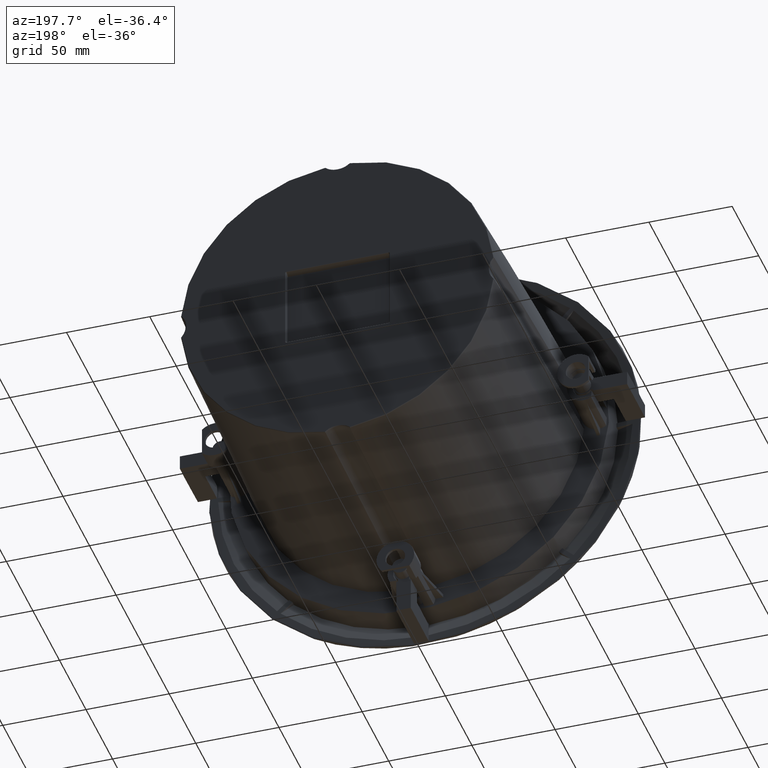
[diagram: clean part render]
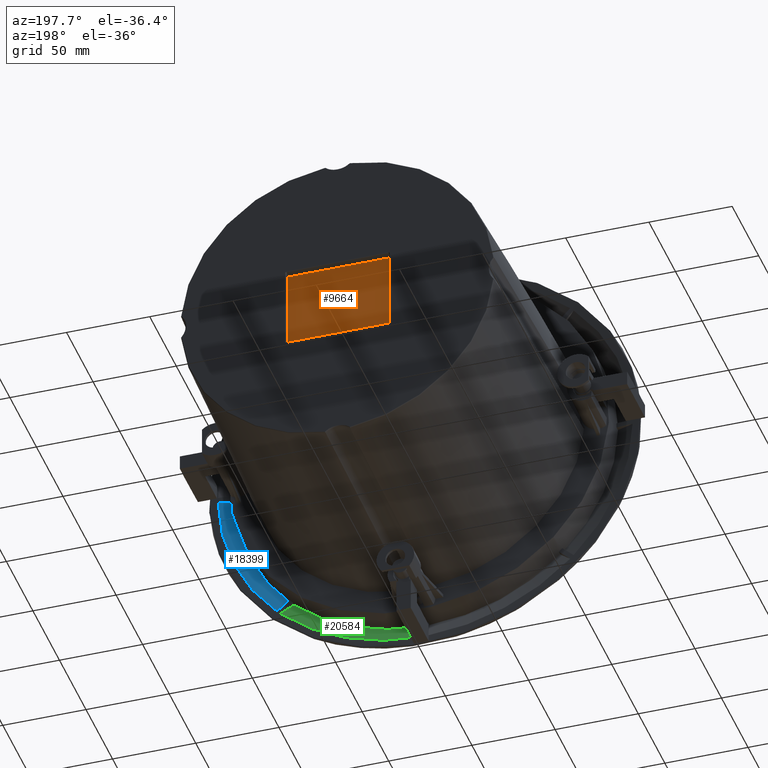
[diagram: same view with three faces highlighted in distinct colors, each labeled with its STEP entity id]
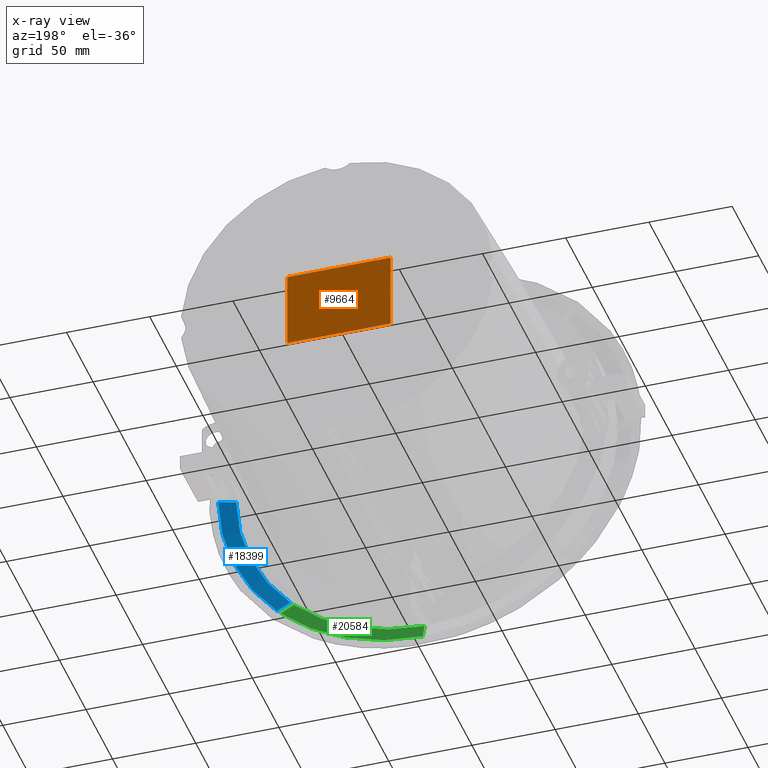
[diagram: x-ray of the same camera — body ghosted, the three highlighted faces saturated]
A machine part, auxiliary view with three faces highlighted in distinct colors.
The next image is the same camera in x-ray (body ghosted, the three faces saturated) — at least one of them is partly hidden behind the body in this view.
Their STEP definitions:

[orange] entity #9664 — the highlighted planar face has unit normal (0, -1, 0).
#223 = CARTESIAN_POINT ( 'NONE',  ( -31.00000000000001421, 150.1999999999999886, -22.94098300562504278 ) ) ;
#534 = CARTESIAN_POINT ( 'NONE',  ( -30.50000000000000711, 150.1999999999999886, 23.50000000000000711 ) ) ;
#1304 = EDGE_CURVE ( 'NONE', #19583, #18828, #22145, .T. ) ;
#1867 = VERTEX_POINT ( 'NONE', #10992 ) ;
#2239 = CARTESIAN_POINT ( 'NONE',  ( 31.00000000000000355, 150.1999999999999886, 22.94098300562507120 ) ) ;
#2754 = PLANE ( 'NONE',  #19427 ) ;
#3495 = DIRECTION ( 'NONE',  ( -1.387778780781490049E-17, 0.0000000000000000000, -1.000000000000000000 ) ) ;
#3971 =( BOUNDED_CURVE ( )  B_SPLINE_CURVE ( 3, ( #11456, #15280, #22106, #11362 ),
 .UNSPECIFIED., .F., .T. ) 
 B_SPLINE_CURVE_WITH_KNOTS ( ( 4, 4 ),
 ( 4.712388980384714543, 6.283185307179586232 ),
 .UNSPECIFIED. ) 
 CURVE ( )  GEOMETRIC_REPRESENTATION_ITEM ( )  RATIONAL_B_SPLINE_CURVE ( ( 1.000000000000000000, 0.8047378541243708217, 0.8047378541243708217, 1.000000000000000000 ) ) 
 REPRESENTATION_ITEM ( '' )  );
#4359 = DIRECTION ( 'NONE',  ( 1.000000000000000000, 0.0000000000000000000, -9.893519695248396509E-17 ) ) ;
#4696 =( BOUNDED_CURVE ( )  B_SPLINE_CURVE ( 3, ( #17885, #13179, #16647, #13290 ),
 .UNSPECIFIED., .F., .T. ) 
 B_SPLINE_CURVE_WITH_KNOTS ( ( 4, 4 ),
 ( 3.141592653589793116, 4.712388980384689674 ),
 .UNSPECIFIED. ) 
 CURVE ( )  GEOMETRIC_REPRESENTATION_ITEM ( )  RATIONAL_B_SPLINE_CURVE ( ( 1.000000000000000000, 0.8047378541243649375, 0.8047378541243649375, 1.000000000000000000 ) ) 
 REPRESENTATION_ITEM ( '' )  );
#4802 = ORIENTED_EDGE ( 'NONE', *, *, #6989, .T. ) ;
#5370 = CARTESIAN_POINT ( 'NONE',  ( 31.00000000000000355, 150.1999999999999886, -22.94098300562503923 ) ) ;
#5873 = EDGE_CURVE ( 'NONE', #15667, #18026, #4696, .T. ) ;
#6084 = ORIENTED_EDGE ( 'NONE', *, *, #21242, .F. ) ;
#6271 = DIRECTION ( 'NONE',  ( 1.249000902703301108E-16, 0.0000000000000000000, -1.000000000000000000 ) ) ;
#6819 = CARTESIAN_POINT ( 'NONE',  ( 30.50000000000000000, 150.1999999999999886, 23.50000000000000355 ) ) ;
#6989 = EDGE_CURVE ( 'NONE', #12534, #18026, #10512, .T. ) ;
#7192 = ORIENTED_EDGE ( 'NONE', *, *, #21896, .F. ) ;
#7339 = VECTOR ( 'NONE', #4359, 1000.000000000000000 ) ;
#7952 = CARTESIAN_POINT ( 'NONE',  ( 30.99999999999999645, 150.1999999999999886, 23.26844757933286445 ) ) ;
#8596 =( BOUNDED_CURVE ( )  B_SPLINE_CURVE ( 3, ( #534, #15175, #10011, #14839 ),
 .UNSPECIFIED., .F., .T. ) 
 B_SPLINE_CURVE_WITH_KNOTS ( ( 4, 4 ),
 ( 3.141592653589793116, 4.712388980384689674 ),
 .UNSPECIFIED. ) 
 CURVE ( )  GEOMETRIC_REPRESENTATION_ITEM ( )  RATIONAL_B_SPLINE_CURVE ( ( 1.000000000000000000, 0.8047378541243649375, 0.8047378541243649375, 1.000000000000000000 ) ) 
 REPRESENTATION_ITEM ( '' )  );
#8688 = LINE ( 'NONE', #15547, #7339 ) ;
#9437 = CARTESIAN_POINT ( 'NONE',  ( 30.79289321881344321, 150.1999999999999886, 23.50000000000000000 ) ) ;
#9541 = CARTESIAN_POINT ( 'NONE',  ( 31.00000000000000355, 150.1999999999999886, 22.94098300562507120 ) ) ;
#9664 = ADVANCED_FACE ( 'NONE', ( #14700 ), #2754, .F. ) ;
#9776 = EDGE_LOOP ( 'NONE', ( #7192, #4802, #22196, #20790, #20215, #11680, #13353, #6084 ) ) ;
#10011 = CARTESIAN_POINT ( 'NONE',  ( -31.00000000000000711, 150.1999999999999886, 23.26844757933286800 ) ) ;
#10512 = LINE ( 'NONE', #17465, #16703 ) ;
#10918 = EDGE_CURVE ( 'NONE', #17235, #15667, #8688, .T. ) ;
#10992 = CARTESIAN_POINT ( 'NONE',  ( -30.50000000000000711, 150.1999999999999886, 23.50000000000000711 ) ) ;
#11225 =( BOUNDED_CURVE ( )  B_SPLINE_CURVE ( 3, ( #9541, #7952, #9437, #16483 ),
 .UNSPECIFIED., .F., .T. ) 
 B_SPLINE_CURVE_WITH_KNOTS ( ( 4, 4 ),
 ( 4.712388980384714543, 6.283185307179586232 ),
 .UNSPECIFIED. ) 
 CURVE ( )  GEOMETRIC_REPRESENTATION_ITEM ( )  RATIONAL_B_SPLINE_CURVE ( ( 1.000000000000000000, 0.8047378541243708217, 0.8047378541243708217, 1.000000000000000000 ) ) 
 REPRESENTATION_ITEM ( '' )  );
#11332 = DIRECTION ( 'NONE',  ( 0.0000000000000000000, -1.000000000000000000, 0.0000000000000000000 ) ) ;
#11362 = CARTESIAN_POINT ( 'NONE',  ( -30.50000000000001066, 150.1999999999999886, -23.49999999999997868 ) ) ;
#11456 = CARTESIAN_POINT ( 'NONE',  ( -31.00000000000001421, 150.1999999999999886, -22.94098300562504278 ) ) ;
#11612 = CARTESIAN_POINT ( 'NONE',  ( -31.00000000000000711, 150.1999999999999886, 22.94098300562506765 ) ) ;
#11631 = DIRECTION ( 'NONE',  ( -1.000000000000000000, 0.0000000000000000000, 9.893519695248396509E-17 ) ) ;
#11680 = ORIENTED_EDGE ( 'NONE', *, *, #1304, .T. ) ;
#12510 = EDGE_CURVE ( 'NONE', #1867, #18828, #8596, .T. ) ;
#12534 = VERTEX_POINT ( 'NONE', #2239 ) ;
#13109 = LINE ( 'NONE', #19938, #21738 ) ;
#13179 = CARTESIAN_POINT ( 'NONE',  ( 30.79289321881346098, 150.1999999999999886, -23.49999999999997513 ) ) ;
#13290 = CARTESIAN_POINT ( 'NONE',  ( 31.00000000000000355, 150.1999999999999886, -22.94098300562503923 ) ) ;
#13353 = ORIENTED_EDGE ( 'NONE', *, *, #12510, .F. ) ;
#13654 = DIRECTION ( 'NONE',  ( 1.526556658859588764E-16, 0.0000000000000000000, 1.000000000000000000 ) ) ;
#14700 = FACE_OUTER_BOUND ( 'NONE', #9776, .T. ) ;
#14839 = CARTESIAN_POINT ( 'NONE',  ( -31.00000000000000711, 150.1999999999999886, 22.94098300562506765 ) ) ;
#15175 = CARTESIAN_POINT ( 'NONE',  ( -30.79289321881346098, 150.1999999999999886, 23.50000000000001776 ) ) ;
#15280 = CARTESIAN_POINT ( 'NONE',  ( -31.00000000000000711, 150.1999999999999886, -23.26844757933283603 ) ) ;
#15547 = CARTESIAN_POINT ( 'NONE',  ( -2.324977128383372643E-15, 150.1999999999999886, -23.49999999999997868 ) ) ;
#15667 = VERTEX_POINT ( 'NONE', #21137 ) ;
#16234 = EDGE_CURVE ( 'NONE', #19583, #17235, #3971, .T. ) ;
#16483 = CARTESIAN_POINT ( 'NONE',  ( 30.50000000000000000, 150.1999999999999886, 23.50000000000000355 ) ) ;
#16553 = CARTESIAN_POINT ( 'NONE',  ( -31.00000000000000711, 150.1999999999999886, 1.757147289737588674E-14 ) ) ;
#16647 = CARTESIAN_POINT ( 'NONE',  ( 31.00000000000000355, 150.1999999999999886, -23.26844757933283958 ) ) ;
#16703 = VECTOR ( 'NONE', #3495, 1000.000000000000000 ) ;
#17235 = VERTEX_POINT ( 'NONE', #20768 ) ;
#17414 = VECTOR ( 'NONE', #13654, 1000.000000000000000 ) ;
#17465 = CARTESIAN_POINT ( 'NONE',  ( 31.00000000000000355, 150.1999999999999886, 1.240893583286889779E-14 ) ) ;
#17694 = VERTEX_POINT ( 'NONE', #6819 ) ;
#17885 = CARTESIAN_POINT ( 'NONE',  ( 30.50000000000000355, 150.1999999999999886, -23.49999999999998224 ) ) ;
#18026 = VERTEX_POINT ( 'NONE', #5370 ) ;
#18828 = VERTEX_POINT ( 'NONE', #11612 ) ;
#19427 = AXIS2_PLACEMENT_3D ( 'NONE', #21534, #11332, #6271 ) ;
#19583 = VERTEX_POINT ( 'NONE', #223 ) ;
#19938 = CARTESIAN_POINT ( 'NONE',  ( 2.324977128383372643E-15, 150.1999999999999886, 23.50000000000000711 ) ) ;
#20215 = ORIENTED_EDGE ( 'NONE', *, *, #16234, .F. ) ;
#20768 = CARTESIAN_POINT ( 'NONE',  ( -30.50000000000001066, 150.1999999999999886, -23.49999999999997868 ) ) ;
#20790 = ORIENTED_EDGE ( 'NONE', *, *, #10918, .F. ) ;
#21137 = CARTESIAN_POINT ( 'NONE',  ( 30.50000000000000355, 150.1999999999999886, -23.49999999999998224 ) ) ;
#21242 = EDGE_CURVE ( 'NONE', #17694, #1867, #13109, .T. ) ;
#21534 = CARTESIAN_POINT ( 'NONE',  ( 0.0000000000000000000, 150.1999999999999886, 1.283914725491116015E-14 ) ) ;
#21738 = VECTOR ( 'NONE', #11631, 1000.000000000000000 ) ;
#21896 = EDGE_CURVE ( 'NONE', #12534, #17694, #11225, .T. ) ;
#22106 = CARTESIAN_POINT ( 'NONE',  ( -30.79289321881346098, 150.1999999999999886, -23.49999999999997868 ) ) ;
#22145 = LINE ( 'NONE', #16553, #17414 ) ;
#22196 = ORIENTED_EDGE ( 'NONE', *, *, #5873, .F. ) ;

[blue] entity #18399 — the highlighted face is a freeform B-spline surface patch.
#621 = VERTEX_POINT ( 'NONE', #15247 ) ;
#686 = CARTESIAN_POINT ( 'NONE',  ( 128.8283944190648640, -8.656767679236528679, -47.63314184474416635 ) ) ;
#690 = DIRECTION ( 'NONE',  ( -0.0000000000000000000, 1.000000000000000000, -0.0000000000000000000 ) ) ;
#922 = CARTESIAN_POINT ( 'NONE',  ( 58.63419636356175602, -24.67956679945779896, -57.19478086939876249 ) ) ;
#2500 = CARTESIAN_POINT ( 'NONE',  ( 139.1938061462523706, -6.639574480459436323, -17.42191918603962009 ) ) ;
#3172 = VERTEX_POINT ( 'NONE', #18038 ) ;
#4324 = CARTESIAN_POINT ( 'NONE',  ( 82.16175506852241028, -15.66972298475792869, -80.04043472496486800 ) ) ;
#4617 = VERTEX_POINT ( 'NONE', #9533 ) ;
#5495 = EDGE_CURVE ( 'NONE', #621, #3172, #18708, .T. ) ;
#5688 = CARTESIAN_POINT ( 'NONE',  ( 88.92576221865510888, -12.23786820109560658, -87.53577404515378646 ) ) ;
#5807 = CARTESIAN_POINT ( 'NONE',  ( 120.0763834534944152, -13.85456382208033510, 4.247406220533676446 ) ) ;
#6024 = CARTESIAN_POINT ( 'NONE',  ( 119.4861714016105481, -13.61005831715945469, -37.12955393068140353 ) ) ;
#6401 = CARTESIAN_POINT ( 'NONE',  ( 82.16175506852241028, -15.66972298475792869, -80.04043472496486800 ) ) ;
#6484 = EDGE_CURVE ( 'NONE', #13695, #3172, #15194, .T. ) ;
#6502 = AXIS2_PLACEMENT_3D ( 'NONE', #11308, #13002, #19826 ) ;
#6518 = EDGE_LOOP ( 'NONE', ( #11560, #12575, #8364, #11005 ) ) ;
#6802 = EDGE_CURVE ( 'NONE', #4617, #13695, #11322, .T. ) ;
#7312 = EDGE_CURVE ( 'NONE', #621, #4617, #12209, .T. ) ;
#7512 = CARTESIAN_POINT ( 'NONE',  ( 148.2581188282599953, -1.784579225335314323, -28.20341743554913450 ) ) ;
#7607 = CARTESIAN_POINT ( 'NONE',  ( 79.01279750324971474, -17.24238060760045954, -77.60292782904205922 ) ) ;
#7823 = CARTESIAN_POINT ( 'NONE',  ( 79.37447893860849035, -24.59717157107771968, -36.45449829435210631 ) ) ;
#8364 = ORIENTED_EDGE ( 'NONE', *, *, #7312, .F. ) ;
#9226 = CARTESIAN_POINT ( 'NONE',  ( 124.5276669081170553, -12.32490501161352725, -1.500000000000231370 ) ) ;
#9414 = CARTESIAN_POINT ( 'NONE',  ( 68.90343055730129151, -21.39461549580077460, -67.47706523793237920 ) ) ;
#9533 = CARTESIAN_POINT ( 'NONE',  ( 114.6942683262824545, -15.66972298475733893, -1.499999999998697930 ) ) ;
#10904 = CARTESIAN_POINT ( 'NONE',  ( 114.6942683262824545, -15.66972298475733893, -1.499999999998697930 ) ) ;
#10991 = CARTESIAN_POINT ( 'NONE',  ( 0.0000000000000000000, -15.66972298474743042, 1.283914725491116015E-14 ) ) ;
#11005 = ORIENTED_EDGE ( 'NONE', *, *, #5495, .T. ) ;
#11308 = CARTESIAN_POINT ( 'NONE',  ( -9.709641540802917083E-15, -12.32490501161353080, 2.254878879571411194E-14 ) ) ;
#11322 = CIRCLE ( 'NONE', #15983, 114.7040765922692032 ) ;
#11560 = ORIENTED_EDGE ( 'NONE', *, *, #6484, .F. ) ;
#12209 = B_SPLINE_CURVE_WITH_KNOTS ( 'NONE', 3,
 ( #9226, #12581, #12476, #10904 ),
 .UNSPECIFIED., .F., .F.,
 ( 4, 4 ),
 ( 2.907926436840383405E-17, 0.01038669990619620585 ),
 .UNSPECIFIED. ) ;
#12476 = CARTESIAN_POINT ( 'NONE',  ( 117.9876570138888212, -14.60061408458862786, -1.500000000000160538 ) ) ;
#12575 = ORIENTED_EDGE ( 'NONE', *, *, #6802, .F. ) ;
#12581 = CARTESIAN_POINT ( 'NONE',  ( 121.2654565411435641, -13.48567476020397748, -1.500000000000288436 ) ) ;
#12803 = CARTESIAN_POINT ( 'NONE',  ( 86.80828681570503136, -13.48567476020408229, -84.68696647214518691 ) ) ;
#13002 = DIRECTION ( 'NONE',  ( 2.369079274957320044E-18, 1.000000000000000000, -2.369079274957328133E-18 ) ) ;
#13542 =( BOUNDED_SURFACE ( )  B_SPLINE_SURFACE ( 3, 3, ( 
 ( #7512, #686, #17708, #5688 ),
 ( #2500, #6024, #14455, #7607 ),
 ( #21411, #21188, #15929, #9414 ),
 ( #5807, #19718, #7823, #922 ) ),
 .UNSPECIFIED., .F., .F., .F. ) 
 B_SPLINE_SURFACE_WITH_KNOTS ( ( 4, 4 ),
 ( 4, 4 ),
 ( 0.0000000000000000000, 1.000000000000000000 ),
 ( 0.0000000000000000000, 1.000000000000000000 ),
 .UNSPECIFIED. ) 
 GEOMETRIC_REPRESENTATION_ITEM ( )  RATIONAL_B_SPLINE_SURFACE ( (
 ( 1.000000000000000000, 0.9951150102632336791, 0.9951150102632336791, 1.000000000000000000),
 ( 0.9987953422158757366, 0.9939162372200212037, 0.9939162372200212037, 0.9987953422158757366),
 ( 0.9987953422158757366, 0.9939162372200212037, 0.9939162372200212037, 0.9987953422158757366),
 ( 1.000000000000000000, 0.9951150102632336791, 0.9951150102632336791, 1.000000000000000000) ) ) 
 REPRESENTATION_ITEM ( '' )  SURFACE ( )  );
#13695 = VERTEX_POINT ( 'NONE', #6401 ) ;
#14356 = FACE_OUTER_BOUND ( 'NONE', #6518, .T. ) ;
#14455 = CARTESIAN_POINT ( 'NONE',  ( 99.32735959851277130, -17.16167664528827785, -57.28836573377910923 ) ) ;
#14704 = CARTESIAN_POINT ( 'NONE',  ( 89.11501788784897826, -12.32490501161355390, -86.99369754428938961 ) ) ;
#15194 = B_SPLINE_CURVE_WITH_KNOTS ( 'NONE', 3,
 ( #4324, #21760, #12803, #14704 ),
 .UNSPECIFIED., .F., .F.,
 ( 4, 4 ),
 ( 0.0000000000000000000, 0.01038669990619660310 ),
 .UNSPECIFIED. ) ;
#15247 = CARTESIAN_POINT ( 'NONE',  ( 124.5276669081170553, -12.32490501161352725, -1.500000000000231370 ) ) ;
#15929 = CARTESIAN_POINT ( 'NONE',  ( 89.45567547818924936, -21.31296728739992830, -46.92482031704449952 ) ) ;
#15983 = AXIS2_PLACEMENT_3D ( 'NONE', #10991, #690, #21511 ) ;
#17708 = CARTESIAN_POINT ( 'NONE',  ( 108.9538552962251856, -12.15830229850133293, -67.50768096758376657 ) ) ;
#18038 = CARTESIAN_POINT ( 'NONE',  ( 89.11501788784897826, -12.32490501161355390, -86.99369754428938961 ) ) ;
#18399 = ADVANCED_FACE ( 'NONE', ( #14356 ), #13542, .F. ) ;
#18708 = CIRCLE ( 'NONE', #6502, 124.5367007174148455 ) ;
#19718 = CARTESIAN_POINT ( 'NONE',  ( 99.95574725307186270, -20.97112404031242150, -15.87322997988882634 ) ) ;
#19826 = DIRECTION ( 'NONE',  ( -0.7071067811865462405, 0.0000000000000000000, 0.7071067811865487940 ) ) ;
#21188 = CARTESIAN_POINT ( 'NONE',  ( 109.8503478097164106, -17.71979459665121936, -26.53014798551738096 ) ) ;
#21411 = CARTESIAN_POINT ( 'NONE',  ( 129.7885642568101900, -10.66775525870483143, -6.591931538423686732 ) ) ;
#21511 = DIRECTION ( 'NONE',  ( -0.7071067811865486830, 0.0000000000000000000, -0.7071067811865463515 ) ) ;
#21760 = CARTESIAN_POINT ( 'NONE',  ( 84.49053254261293944, -14.60061408458864385, -82.36921219905325131 ) ) ;

[green] entity #20584 — the highlighted face is a freeform B-spline surface patch.
#95 = CARTESIAN_POINT ( 'NONE',  ( 26.53014798551824072, -17.71979459665086409, -109.8503478097171779 ) ) ;
#203 = CARTESIAN_POINT ( 'NONE',  ( 15.87322997989027762, -20.97112404031198807, -99.95574725307304220 ) ) ;
#694 = CARTESIAN_POINT ( 'NONE',  ( 1.499999999999987566, -12.32490501161355567, -124.5276669081169985 ) ) ;
#1211 = CARTESIAN_POINT ( 'NONE',  ( 87.53577404515368698, -12.23786820109562612, -88.92576221865509467 ) ) ;
#1323 = CARTESIAN_POINT ( 'NONE',  ( 67.50768096758356762, -12.15830229850137911, -108.9538552962251288 ) ) ;
#1346 = ORIENTED_EDGE ( 'NONE', *, *, #13012, .F. ) ;
#1365 = CARTESIAN_POINT ( 'NONE',  ( 86.99369754428919066, -12.32490501161355567, -89.11501788784914879 ) ) ;
#1778 = CARTESIAN_POINT ( 'NONE',  ( 57.19478086940031147, -24.67956679945731935, -58.63419636356315578 ) ) ;
#1883 = CARTESIAN_POINT ( 'NONE',  ( -9.709641540802917083E-15, -12.32490501161353436, 2.254878879571411194E-14 ) ) ;
#2100 = CARTESIAN_POINT ( 'NONE',  ( 1.499999999999987566, -12.32490501161355567, -124.5276669081169985 ) ) ;
#2718 =( BOUNDED_SURFACE ( )  B_SPLINE_SURFACE ( 3, 3, ( 
 ( #1211, #1323, #20115, #4712 ),
 ( #11591, #18454, #16765, #8217 ),
 ( #20224, #5162, #95, #17642 ),
 ( #1778, #9003, #203, #15642 ) ),
 .UNSPECIFIED., .F., .F., .F. ) 
 B_SPLINE_SURFACE_WITH_KNOTS ( ( 4, 4 ),
 ( 4, 4 ),
 ( 0.0000000000000000000, 1.000000000000000000 ),
 ( 0.0000000000000000000, 1.000000000000000000 ),
 .UNSPECIFIED. ) 
 GEOMETRIC_REPRESENTATION_ITEM ( )  RATIONAL_B_SPLINE_SURFACE ( (
 ( 1.000000000000000000, 0.9951150102632336791, 0.9951150102632336791, 1.000000000000000000),
 ( 0.9987953422158759587, 0.9939162372200214257, 0.9939162372200214257, 0.9987953422158759587),
 ( 0.9987953422158759587, 0.9939162372200214257, 0.9939162372200214257, 0.9987953422158759587),
 ( 1.000000000000000000, 0.9951150102632336791, 0.9951150102632336791, 1.000000000000000000) ) ) 
 REPRESENTATION_ITEM ( '' )  SURFACE ( )  );
#2811 = AXIS2_PLACEMENT_3D ( 'NONE', #1883, #12577, #5832 ) ;
#2983 = CARTESIAN_POINT ( 'NONE',  ( 84.68696647214503059, -13.48567476020408940, -86.80828681570514505 ) ) ;
#3642 = CARTESIAN_POINT ( 'NONE',  ( 1.499999999998384625, -15.66972298475675629, -114.6942683262854104 ) ) ;
#3924 = EDGE_CURVE ( 'NONE', #10404, #8876, #20805, .T. ) ;
#4152 = DIRECTION ( 'NONE',  ( -0.0000000000000000000, 1.000000000000000000, -0.0000000000000000000 ) ) ;
#4712 = CARTESIAN_POINT ( 'NONE',  ( 28.20341743554882186, -1.784579225335409802, -148.2581188282597395 ) ) ;
#5162 = CARTESIAN_POINT ( 'NONE',  ( 46.92482031704543743, -21.31296728739956237, -89.45567547819004517 ) ) ;
#5832 = DIRECTION ( 'NONE',  ( -0.7071067811865462405, 0.0000000000000000000, 0.7071067811865487940 ) ) ;
#7770 = B_SPLINE_CURVE_WITH_KNOTS ( 'NONE', 3,
 ( #20080, #2983, #11346, #11672 ),
 .UNSPECIFIED., .F., .F.,
 ( 4, 4 ),
 ( 1.993045536433795054E-17, 0.01038669990619670372 ),
 .UNSPECIFIED. ) ;
#8217 = CARTESIAN_POINT ( 'NONE',  ( 17.42191918603989365, -6.639574480459283556, -139.1938061462525695 ) ) ;
#8876 = VERTEX_POINT ( 'NONE', #10687 ) ;
#8935 = EDGE_CURVE ( 'NONE', #10606, #20954, #22185, .T. ) ;
#9003 = CARTESIAN_POINT ( 'NONE',  ( 36.45449829435360556, -24.59717157107726848, -79.37447893860979775 ) ) ;
#9789 = ORIENTED_EDGE ( 'NONE', *, *, #3924, .F. ) ;
#10404 = VERTEX_POINT ( 'NONE', #17489 ) ;
#10606 = VERTEX_POINT ( 'NONE', #1365 ) ;
#10687 = CARTESIAN_POINT ( 'NONE',  ( 1.499999999998384625, -15.66972298475675629, -114.6942683262854104 ) ) ;
#10995 = CARTESIAN_POINT ( 'NONE',  ( 1.500000000000004885, -13.48567476020334155, -121.2654565411454968 ) ) ;
#11346 = CARTESIAN_POINT ( 'NONE',  ( 82.36921219905327973, -14.60061408458869003, -84.49053254261282575 ) ) ;
#11591 = CARTESIAN_POINT ( 'NONE',  ( 77.60292782904251396, -17.24238060760022151, -79.01279750325018369 ) ) ;
#11672 = CARTESIAN_POINT ( 'NONE',  ( 80.04043472496468326, -15.66972298475783809, -82.16175506852256660 ) ) ;
#12577 = DIRECTION ( 'NONE',  ( 2.369079274957320044E-18, 1.000000000000000000, -2.369079274957328133E-18 ) ) ;
#12650 = ORIENTED_EDGE ( 'NONE', *, *, #13700, .F. ) ;
#12866 = EDGE_LOOP ( 'NONE', ( #1346, #9789, #12650, #17843 ) ) ;
#13012 = EDGE_CURVE ( 'NONE', #8876, #20954, #20367, .T. ) ;
#13413 = FACE_OUTER_BOUND ( 'NONE', #12866, .T. ) ;
#13700 = EDGE_CURVE ( 'NONE', #10606, #10404, #7770, .T. ) ;
#15642 = CARTESIAN_POINT ( 'NONE',  ( -4.247406220532274901, -13.85456382207994430, -120.0763834534955237 ) ) ;
#16765 = CARTESIAN_POINT ( 'NONE',  ( 37.12955393068174459, -13.61005831715926462, -119.4861714016108039 ) ) ;
#16867 = AXIS2_PLACEMENT_3D ( 'NONE', #17893, #4152, #17784 ) ;
#17373 = CARTESIAN_POINT ( 'NONE',  ( 1.499999999999914513, -14.60061408458726717, -117.9876570138927150 ) ) ;
#17489 = CARTESIAN_POINT ( 'NONE',  ( 80.04043472496468326, -15.66972298475783809, -82.16175506852256660 ) ) ;
#17642 = CARTESIAN_POINT ( 'NONE',  ( 6.591931538424500303, -10.66775525870451347, -129.7885642568108722 ) ) ;
#17784 = DIRECTION ( 'NONE',  ( -0.7071067811865513475, 0.0000000000000000000, -0.7071067811865436870 ) ) ;
#17843 = ORIENTED_EDGE ( 'NONE', *, *, #8935, .T. ) ;
#17893 = CARTESIAN_POINT ( 'NONE',  ( 0.0000000000000000000, -15.66972298474831859, 1.283914725491116015E-14 ) ) ;
#18454 = CARTESIAN_POINT ( 'NONE',  ( 57.28836573377950714, -17.16167664528806824, -99.32735959851311236 ) ) ;
#20080 = CARTESIAN_POINT ( 'NONE',  ( 86.99369754428919066, -12.32490501161355567, -89.11501788784914879 ) ) ;
#20115 = CARTESIAN_POINT ( 'NONE',  ( 47.63314184474392476, -8.656767679236590851, -128.8283944190646650 ) ) ;
#20224 = CARTESIAN_POINT ( 'NONE',  ( 67.47706523793335975, -21.39461549580038735, -68.90343055730221522 ) ) ;
#20367 = B_SPLINE_CURVE_WITH_KNOTS ( 'NONE', 3,
 ( #3642, #17373, #10995, #694 ),
 .UNSPECIFIED., .F., .F.,
 ( 4, 4 ),
 ( 0.0000000000000000000, 0.01038669990618997820 ),
 .UNSPECIFIED. ) ;
#20584 = ADVANCED_FACE ( 'NONE', ( #13413 ), #2718, .F. ) ;
#20805 = CIRCLE ( 'NONE', #16867, 114.7040765922692174 ) ;
#20954 = VERTEX_POINT ( 'NONE', #2100 ) ;
#22185 = CIRCLE ( 'NONE', #2811, 124.5367007174147886 ) ;